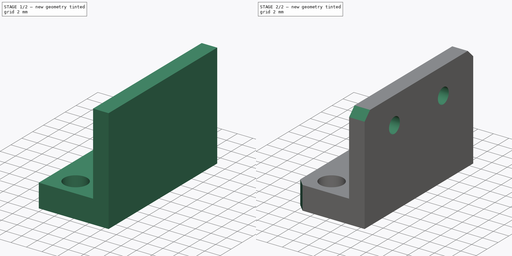
[diagram: build sequence overview — one tinted view per stage of 2, left to right]
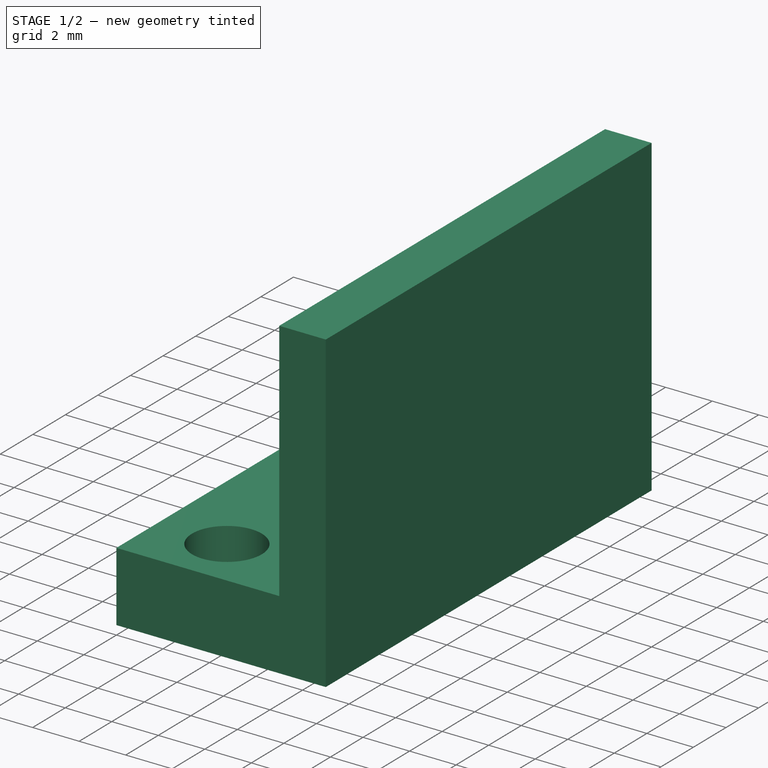
[diagram: stage 1 of 2 — iso view after this stage's code; geometry added in this stage tinted green]
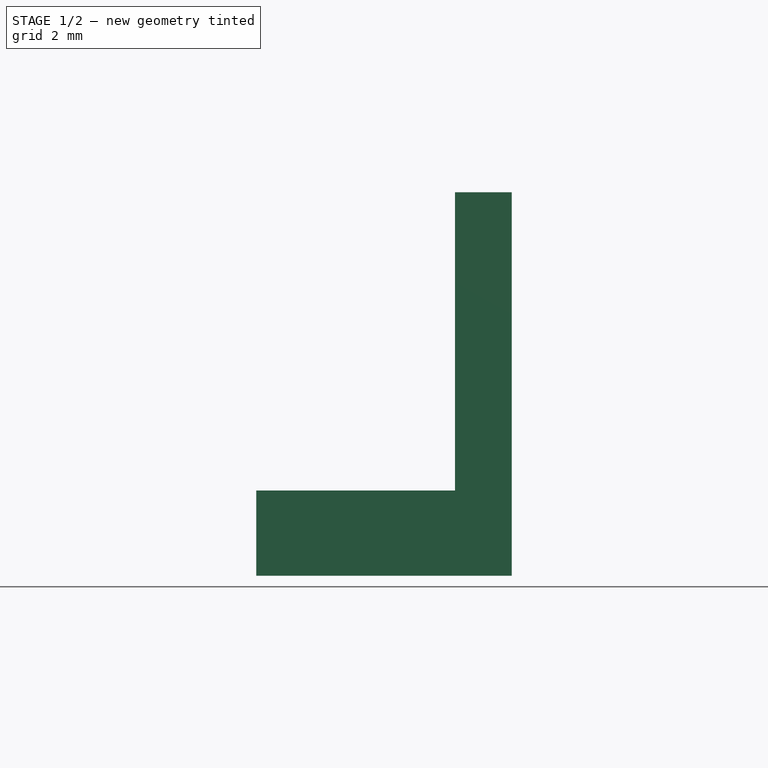
[diagram: stage 1 of 2 — front view after this stage's code; geometry added in this stage tinted green]
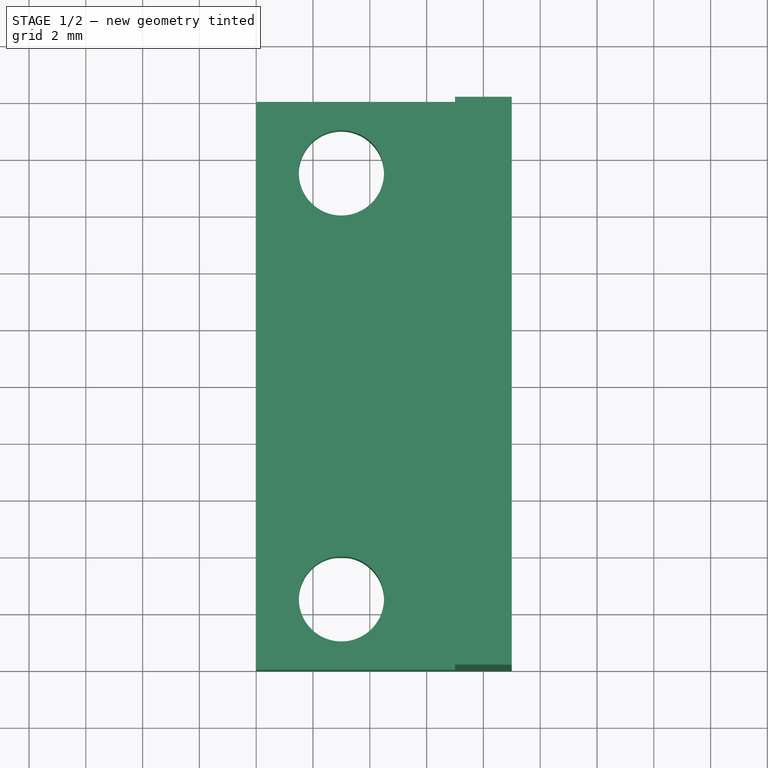
[diagram: stage 1 of 2 — top view after this stage's code; geometry added in this stage tinted green]
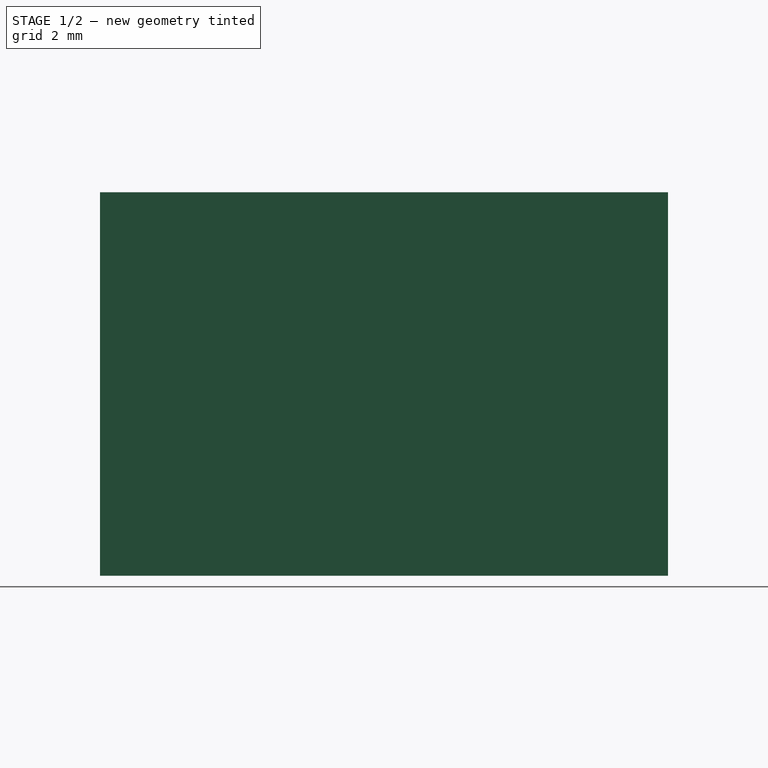
[diagram: stage 1 of 2 — right view after this stage's code; geometry added in this stage tinted green]
FCSTD DOCUMENT  (FreeCAD 0.18R14555 (Git shallow))
Label: top-left-endstop-mount
License: All rights reserved
LicenseURL: http://en.wikipedia.org/wiki/All_rights_reserved
objects: Sketcher::SketchObject×3, PartDesign::Pad×2, PartDesign::Pocket×1, PartDesign::Chamfer×1, PartDesign::Body×1
note: 11 computed .brp shape members not serialized (recipe doc carries the construction recipe); baked Part::Feature solids carry a one-line shape summary decoded from their .brp

FEATURE [Sketcher::SketchObject] Sketch
  MapMode = 5
  Support = -> [XY_Plane]
  sketch-geometry (9):
    g0: LineSegment StartX=0 StartY=0 StartZ=0 EndX=9 EndY=0 EndZ=0
    g1: LineSegment StartX=9 StartY=0 StartZ=0 EndX=9 EndY=20 EndZ=0
    g2: LineSegment StartX=9 StartY=20 StartZ=0 EndX=0 EndY=20 EndZ=0
    g3: LineSegment StartX=0 StartY=20 StartZ=0 EndX=0 EndY=0 EndZ=0
    g4: Circle CenterX=3 CenterY=17.5 CenterZ=0 NormalX=0 NormalY=0 NormalZ=1 AngleXU=0 Radius=1.5
    g5: Circle CenterX=3 CenterY=2.5 CenterZ=0 NormalX=0 NormalY=0 NormalZ=1 AngleXU=0 Radius=1.5
    g6: LineSegment [constr] StartX=0 StartY=0 StartZ=0 EndX=3 EndY=2.5 EndZ=0
    g7: LineSegment [constr] StartX=3 StartY=2.5 StartZ=0 EndX=3 EndY=17.5 EndZ=0
    g8: LineSegment [constr] StartX=3 StartY=17.5 StartZ=0 EndX=0 EndY=20 EndZ=0
  constraints (23):
    c: Coincident(g0,g1)
    c: Coincident(g1,g2)
    c: Coincident(g2,g3)
    c: Coincident(g3,g0)
    c: Horizontal(g0)
    c: Horizontal(g2)
    c: Vertical(g1)
    c: Vertical(g3)
    c: Coincident(g0,g-1)
    c: Coincident(g6,g0)
    c: Coincident(g6,g5)
    c: Coincident(g7,g5)
    c: Coincident(g7,g4)
    c: Coincident(g8,g4)
    c: Coincident(g8,g2)
    c: Vertical(g7)
    c: Equal(g6,g8)
    c: Equal(g4,g5)
    c: DistanceY(g7,g7) = 15
    c: DistanceY(g3,g3) = 20
    c: DistanceX(g2,g4) = 3
    c: DistanceX(g4,g1) = 6
    c: Radius(g4) = 1.5
FEATURE [PartDesign::Pad] Pad
  Length = 3
  Length2 = 100
  Profile = -> Sketch
  Type = 0
FEATURE [Sketcher::SketchObject] Sketch001
  ExternalGeometry = -> [Pad]
  MapMode = 5
  Placement = pos=(0,0,3) rot=(0,0,1;0rad)
  Support = -> [Pad]
  sketch-geometry (4):
    g0: LineSegment StartX=9 StartY=20 StartZ=0 EndX=7 EndY=20 EndZ=0
    g1: LineSegment StartX=7 StartY=20 StartZ=0 EndX=7 EndY=0 EndZ=0
    g2: LineSegment StartX=7 StartY=0 StartZ=0 EndX=9 EndY=0 EndZ=0
    g3: LineSegment StartX=9 StartY=0 StartZ=0 EndX=9 EndY=20 EndZ=0
  constraints (10):
    c: Coincident(g0,g1)
    c: Coincident(g1,g2)
    c: Coincident(g2,g3)
    c: Coincident(g3,g0)
    c: Horizontal(g0)
    c: Horizontal(g2)
    c: Vertical(g1)
    c: Coincident(g0,g-3)
    c: Coincident(g2,g-3)
    c: DistanceX(g0,g0) = 2
FEATURE [PartDesign::Pad] Pad001
  BaseFeature = -> Pad
  Length = 10.5
  Length2 = 100
  Profile = -> Sketch001
  Type = 0
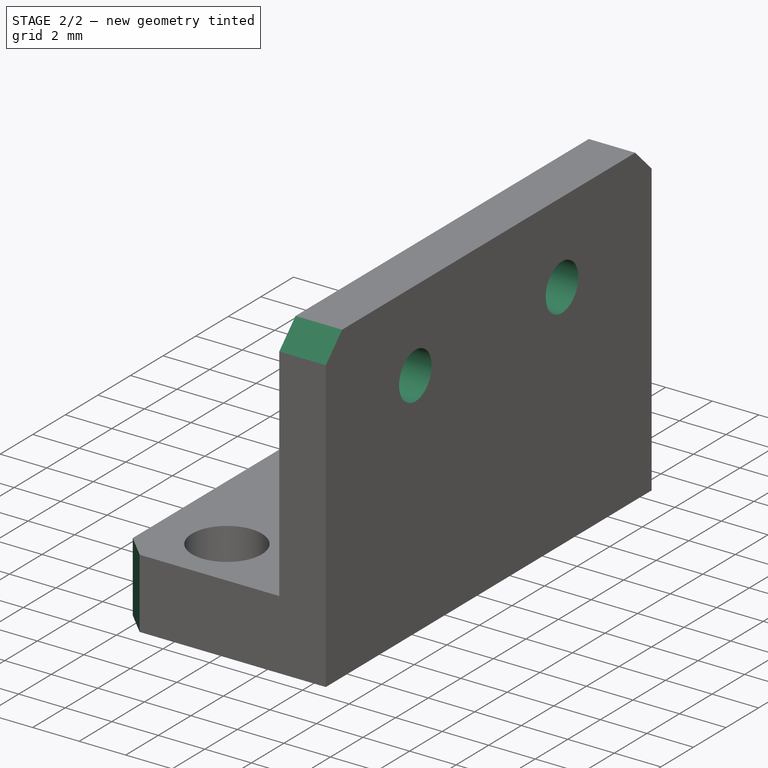
[diagram: stage 2 of 2 — iso view after this stage's code; geometry added in this stage tinted green]
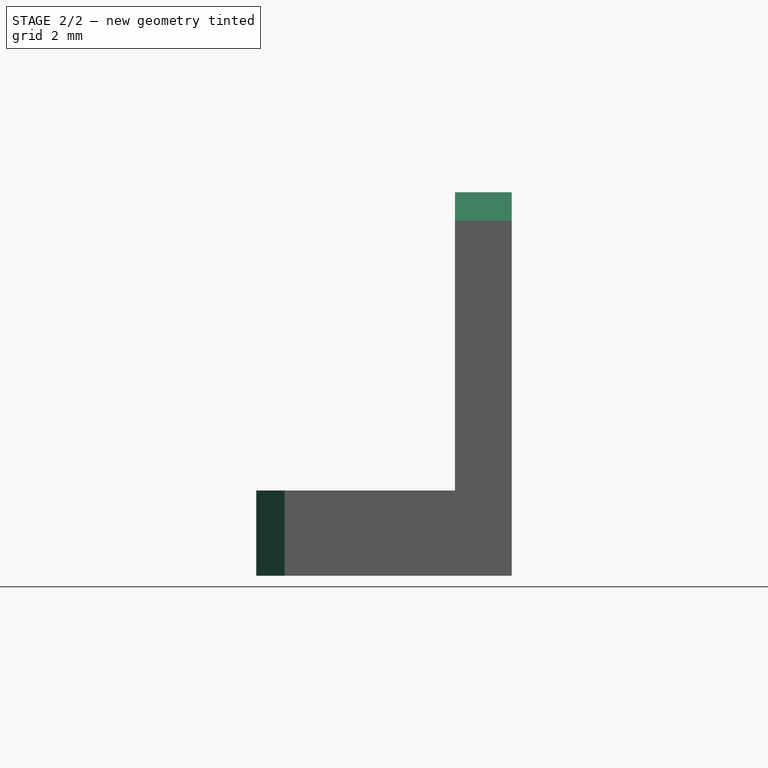
[diagram: stage 2 of 2 — front view after this stage's code; geometry added in this stage tinted green]
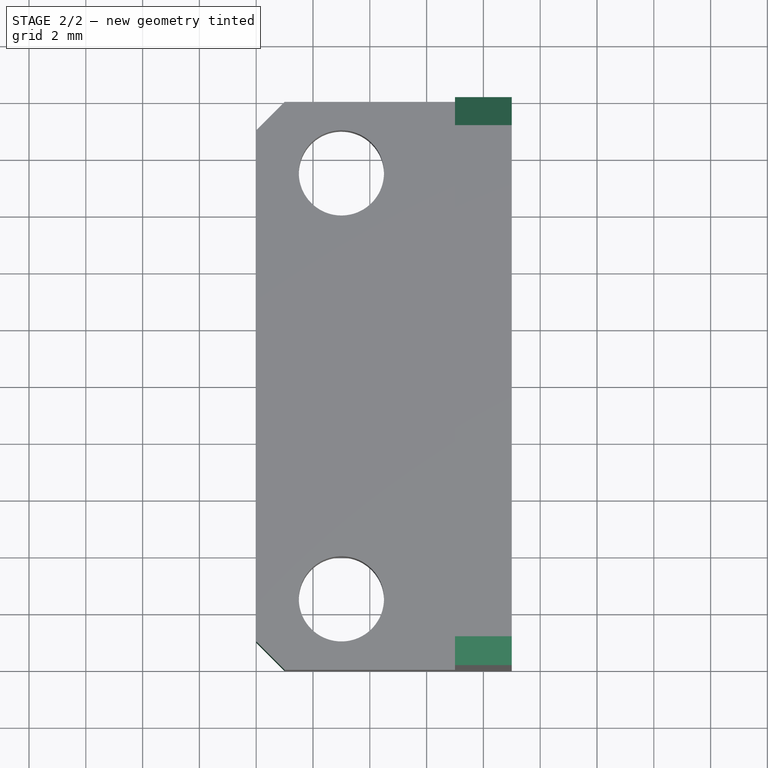
[diagram: stage 2 of 2 — top view after this stage's code; geometry added in this stage tinted green]
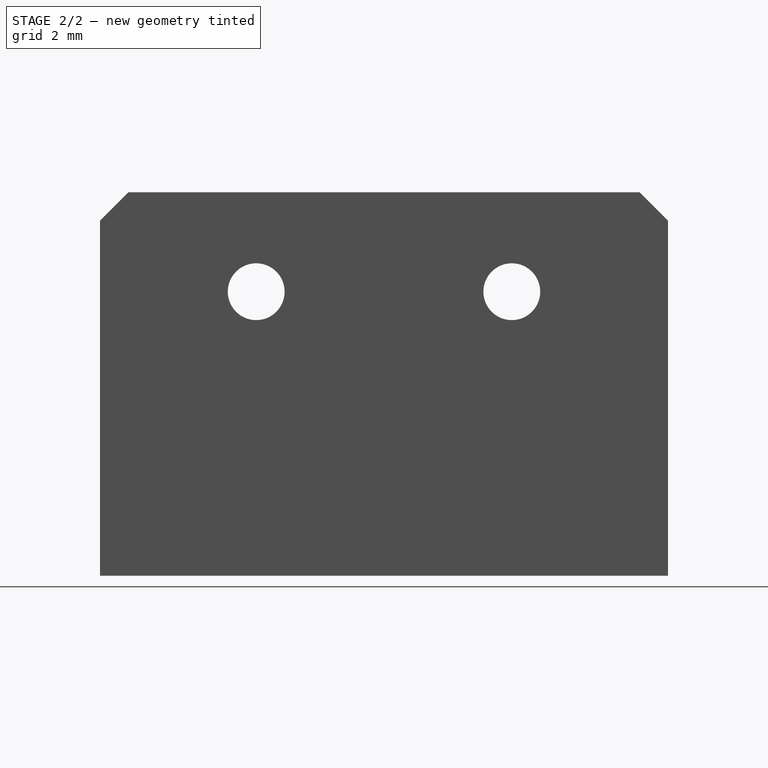
[diagram: stage 2 of 2 — right view after this stage's code; geometry added in this stage tinted green]
FEATURE [Sketcher::SketchObject] Sketch002
  ExternalGeometry = -> [Pad001]
  MapMode = 5
  Placement = pos=(9,0,0) rot=(0.57735,0.57735,0.57735;2.0944rad)
  Support = -> [Pad001]
  sketch-geometry (5):
    g0: Circle CenterX=5.5 CenterY=10 CenterZ=0 NormalX=0 NormalY=0 NormalZ=1 AngleXU=0 Radius=1
    g1: Circle CenterX=14.5 CenterY=10 CenterZ=0 NormalX=0 NormalY=0 NormalZ=1 AngleXU=0 Radius=1
    g2: LineSegment [constr] StartX=5.5 StartY=10 StartZ=0 EndX=14.5 EndY=10 EndZ=0
    g3: LineSegment [constr] StartX=5.5 StartY=10 StartZ=0 EndX=0 EndY=13.5 EndZ=0
    g4: LineSegment [constr] StartX=14.5 StartY=10 StartZ=0 EndX=20 EndY=13.5 EndZ=0
  constraints (12):
    c: Coincident(g2,g0)
    c: Coincident(g2,g1)
    c: Horizontal(g2)
    c: Coincident(g3,g-3)
    c: Coincident(g4,g1)
    c: Coincident(g4,g-3)
    c: Coincident(g3,g0)
    c: Equal(g3,g4)
    c: Equal(g0,g1)
    c: DistanceX(g2,g2) = 9
    c: Radius(g0) = 1
    c: DistanceY(g0,g3) = 3.5
FEATURE [PartDesign::Pocket] Pocket
  BaseFeature = -> Pad001
  Length = 5
  Length2 = 100
  Profile = -> Sketch002
  Type = 0
FEATURE [PartDesign::Chamfer] Chamfer
  Base = -> Pocket [Edge21,Edge33,Edge1,Edge6]
  BaseFeature = -> Pocket
  Size = 1
FEATURE [PartDesign::Body] Body
  Group = -> [Sketch,Pad,Sketch001,Pad001,Sketch002,Pocket,Chamfer]
  Origin = -> Origin
  Tip = -> Chamfer
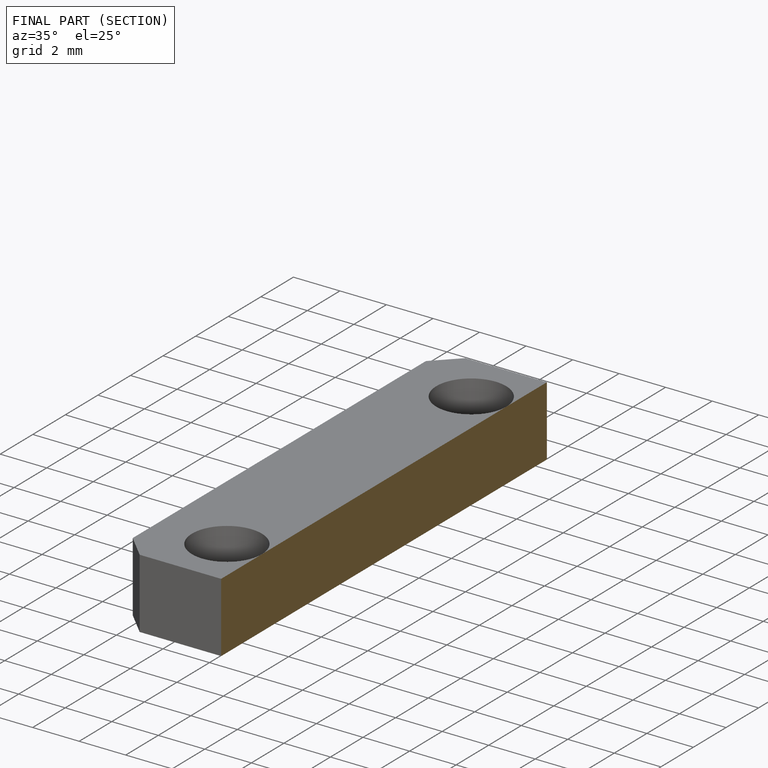
[diagram: finished part — half-section view (interior)]
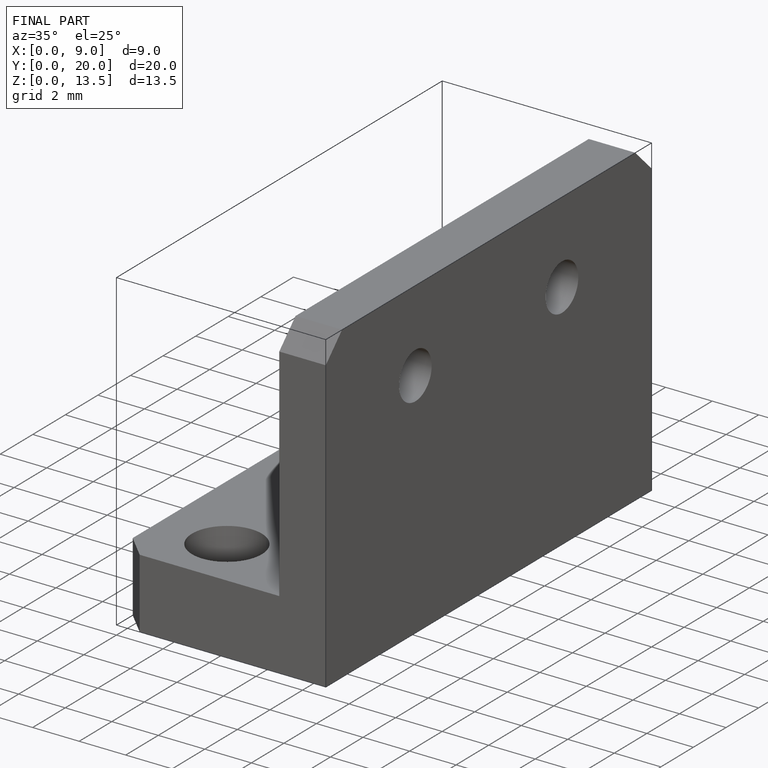
[diagram: finished part — iso view with bounding-box wireframe]
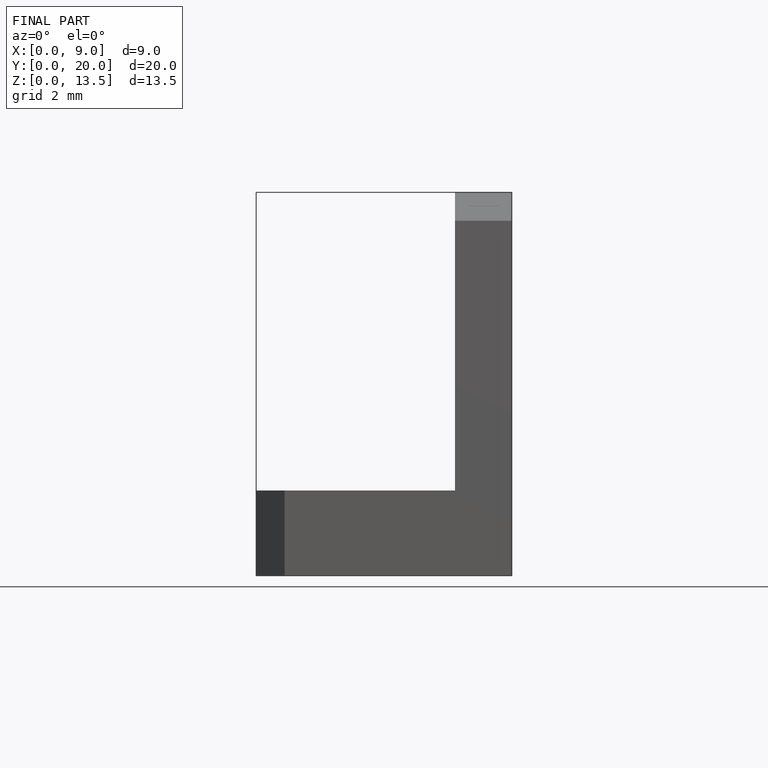
[diagram: finished part — front view with bounding-box wireframe]
